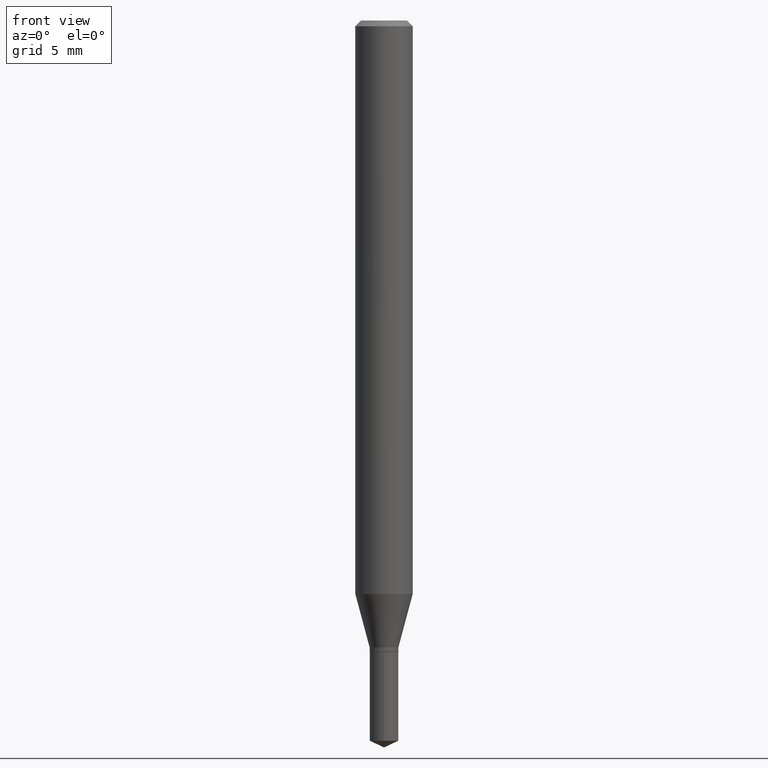
[diagram: clean part render]
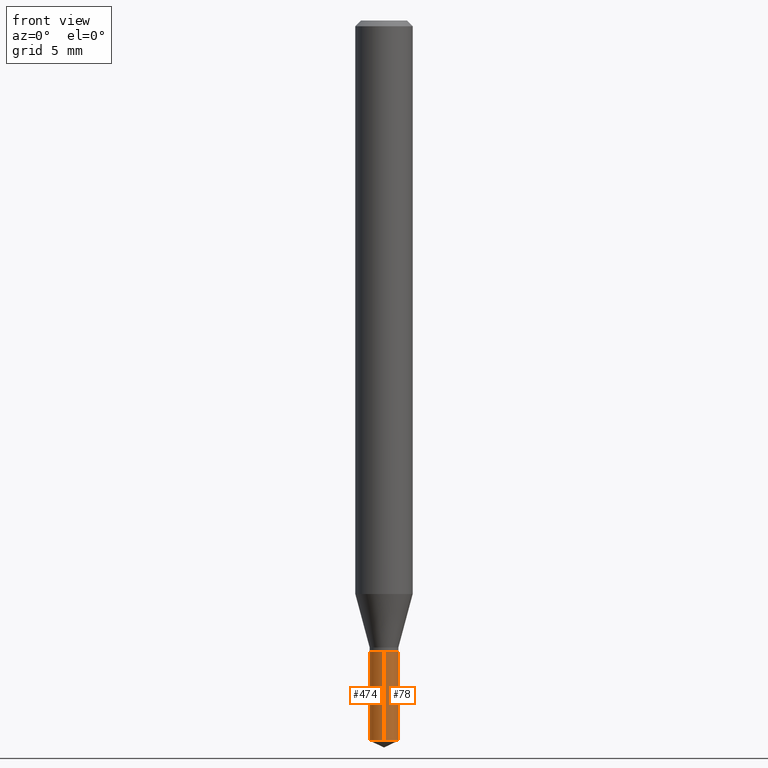
[diagram: same view with one multi-face feature highlighted, each face labeled with its STEP entity id]
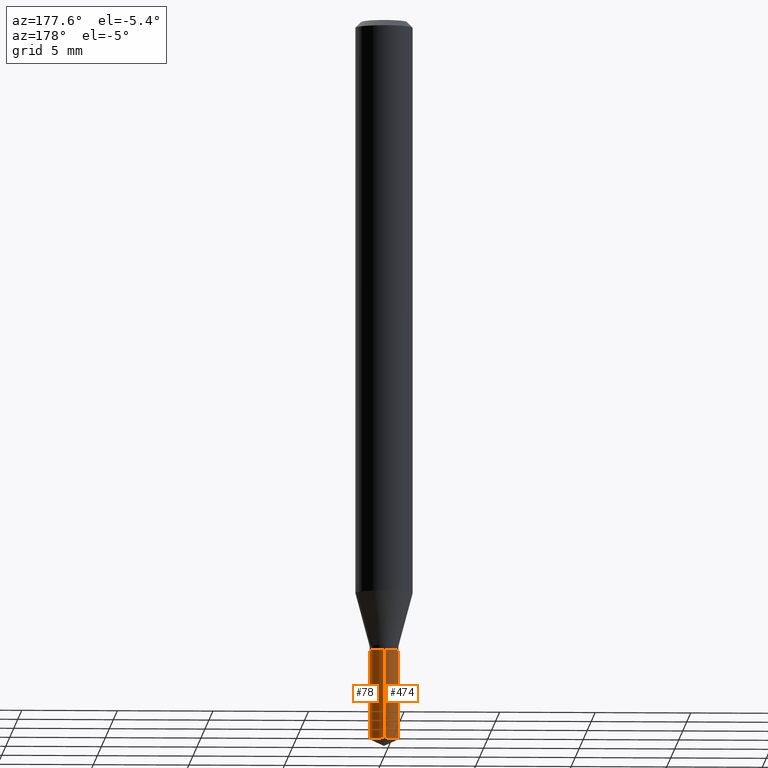
[diagram: same view with one multi-face feature highlighted, each face labeled with its STEP entity id]
A machine part, front view. The highlighted faces form ONE feature: a constant-radius fillet chain: 2 tangent blend faces with common blend radius 0.7506 mm. The faces share edges in the B-rep.
A second angle (auxiliary view) of the same feature is appended — it is thin or edge-on in the first view.
Their STEP definitions:
[1] entity #474 (Cylinder):
#5 = DIRECTION ( 'NONE',  ( -6.982962677686265922E-15, -1.000000000000000000, 0.000000000000000000 ) ) ;
#7 = CARTESIAN_POINT ( 'NONE',  ( 2.099653784171458177E-16, 0.02954999999999482346, -1.482320608701519937 ) ) ;
#19 = CYLINDRICAL_SURFACE ( 'NONE', #335, 0.02954999999999999641 ) ;
#61 = ORIENTED_EDGE ( 'NONE', *, *, #293, .F. ) ;
#67 = DIRECTION ( 'NONE',  ( -2.456664372604500881E-29, 3.475448650518548198E-15, 1.000000000000000000 ) ) ;
#71 = VECTOR ( 'NONE', #397, 39.37007874015748143 ) ;
#86 = VERTEX_POINT ( 'NONE', #7 ) ;
#102 = DIRECTION ( 'NONE',  ( -2.456664372604500601E-29, 3.475448650518548198E-15, 1.000000000000000000 ) ) ;
#108 = CARTESIAN_POINT ( 'NONE',  ( 2.099653784171458424E-16, 0.02954999999999545837, -1.299199999999999910 ) ) ;
#127 = CARTESIAN_POINT ( 'NONE',  ( 2.099653784171413311E-16, 0.02954999999999545837, -1.299199999999999910 ) ) ;
#131 = VECTOR ( 'NONE', #67, 39.37007874015748143 ) ;
#142 = CIRCLE ( 'NONE', #415, 0.02954999999999999641 ) ;
#150 = VERTEX_POINT ( 'NONE', #284 ) ;
#160 = CARTESIAN_POINT ( 'NONE',  ( 3.177153072995728757E-29, -4.536132555425014733E-15, -1.299199999999999910 ) ) ;
#163 = LINE ( 'NONE', #127, #71 ) ;
#176 = ORIENTED_EDGE ( 'NONE', *, *, #243, .T. ) ;
#196 = VERTEX_POINT ( 'NONE', #108 ) ;
#215 = AXIS2_PLACEMENT_3D ( 'NONE', #160, #306, #5 ) ;
#232 = EDGE_CURVE ( 'NONE', #86, #407, #142, .T. ) ;
#243 = EDGE_CURVE ( 'NONE', #407, #150, #364, .T. ) ;
#246 = DIRECTION ( 'NONE',  ( -2.456664372604500601E-29, 3.475448650518548198E-15, 1.000000000000000000 ) ) ;
#247 = DIRECTION ( 'NONE',  ( -6.982962677686265922E-15, -1.000000000000000000, 0.000000000000000000 ) ) ;
#248 = EDGE_LOOP ( 'NONE', ( #336, #450, #176, #61 ) ) ;
#250 = CIRCLE ( 'NONE', #215, 0.02954999999999999988 ) ;
#252 = CARTESIAN_POINT ( 'NONE',  ( -2.063465471255973657E-16, -0.02955000000000453445, -1.299199999999999910 ) ) ;
#271 = FACE_OUTER_BOUND ( 'NONE', #248, .T. ) ;
#284 = CARTESIAN_POINT ( 'NONE',  ( -2.063465471255973904E-16, -0.02955000000000453791, -1.299199999999999910 ) ) ;
#293 = EDGE_CURVE ( 'NONE', #196, #150, #250, .T. ) ;
#306 = DIRECTION ( 'NONE',  ( -2.456664372604500601E-29, 3.475448650518548198E-15, 1.000000000000000000 ) ) ;
#335 = AXIS2_PLACEMENT_3D ( 'NONE', #427, #246, #401 ) ;
#336 = ORIENTED_EDGE ( 'NONE', *, *, #436, .F. ) ;
#364 = LINE ( 'NONE', #252, #131 ) ;
#397 = DIRECTION ( 'NONE',  ( -2.456664372604500881E-29, 3.475448650518548198E-15, 1.000000000000000000 ) ) ;
#401 = DIRECTION ( 'NONE',  ( -6.982962677686265922E-15, -1.000000000000000000, 0.000000000000000000 ) ) ;
#407 = VERTEX_POINT ( 'NONE', #469 ) ;
#415 = AXIS2_PLACEMENT_3D ( 'NONE', #437, #102, #247 ) ;
#427 = CARTESIAN_POINT ( 'NONE',  ( 3.177153072995728757E-29, -4.536132555425014733E-15, -1.299199999999999910 ) ) ;
#436 = EDGE_CURVE ( 'NONE', #86, #196, #163, .T. ) ;
#437 = CARTESIAN_POINT ( 'NONE',  ( 3.627018948282403483E-29, -5.172558827818846924E-15, -1.482320608701519937 ) ) ;
#450 = ORIENTED_EDGE ( 'NONE', *, *, #232, .T. ) ;
#469 = CARTESIAN_POINT ( 'NONE',  ( -2.063465471255928544E-16, -0.02955000000000516935, -1.482320608701519937 ) ) ;
#474 = ADVANCED_FACE ( 'NONE', ( #271 ), #19, .T. ) ;
[2] entity #78 (Cylinder):
#2 = EDGE_LOOP ( 'NONE', ( #396, #213, #97, #295 ) ) ;
#7 = CARTESIAN_POINT ( 'NONE',  ( 2.099653784171458177E-16, 0.02954999999999482346, -1.482320608701519937 ) ) ;
#15 = CARTESIAN_POINT ( 'NONE',  ( 3.177153072995728757E-29, -4.536132555425014733E-15, -1.299199999999999910 ) ) ;
#21 = CIRCLE ( 'NONE', #309, 0.02954999999999999988 ) ;
#46 = DIRECTION ( 'NONE',  ( -2.456664372604500601E-29, 3.475448650518548198E-15, 1.000000000000000000 ) ) ;
#67 = DIRECTION ( 'NONE',  ( -2.456664372604500881E-29, 3.475448650518548198E-15, 1.000000000000000000 ) ) ;
#71 = VECTOR ( 'NONE', #397, 39.37007874015748143 ) ;
#78 = ADVANCED_FACE ( 'NONE', ( #83 ), #229, .T. ) ;
#83 = FACE_OUTER_BOUND ( 'NONE', #2, .T. ) ;
#86 = VERTEX_POINT ( 'NONE', #7 ) ;
#97 = ORIENTED_EDGE ( 'NONE', *, *, #337, .F. ) ;
#108 = CARTESIAN_POINT ( 'NONE',  ( 2.099653784171458424E-16, 0.02954999999999545837, -1.299199999999999910 ) ) ;
#127 = CARTESIAN_POINT ( 'NONE',  ( 2.099653784171413311E-16, 0.02954999999999545837, -1.299199999999999910 ) ) ;
#131 = VECTOR ( 'NONE', #67, 39.37007874015748143 ) ;
#149 = EDGE_CURVE ( 'NONE', #407, #86, #256, .T. ) ;
#150 = VERTEX_POINT ( 'NONE', #284 ) ;
#162 = AXIS2_PLACEMENT_3D ( 'NONE', #356, #324, #313 ) ;
#163 = LINE ( 'NONE', #127, #71 ) ;
#196 = VERTEX_POINT ( 'NONE', #108 ) ;
#209 = DIRECTION ( 'NONE',  ( -6.982962677686265922E-15, -1.000000000000000000, 0.000000000000000000 ) ) ;
#213 = ORIENTED_EDGE ( 'NONE', *, *, #436, .T. ) ;
#219 = AXIS2_PLACEMENT_3D ( 'NONE', #383, #46, #234 ) ;
#229 = CYLINDRICAL_SURFACE ( 'NONE', #219, 0.02954999999999999641 ) ;
#234 = DIRECTION ( 'NONE',  ( -6.982962677686265922E-15, -1.000000000000000000, 0.000000000000000000 ) ) ;
#243 = EDGE_CURVE ( 'NONE', #407, #150, #364, .T. ) ;
#252 = CARTESIAN_POINT ( 'NONE',  ( -2.063465471255973657E-16, -0.02955000000000453445, -1.299199999999999910 ) ) ;
#256 = CIRCLE ( 'NONE', #162, 0.02954999999999999641 ) ;
#284 = CARTESIAN_POINT ( 'NONE',  ( -2.063465471255973904E-16, -0.02955000000000453791, -1.299199999999999910 ) ) ;
#295 = ORIENTED_EDGE ( 'NONE', *, *, #243, .F. ) ;
#309 = AXIS2_PLACEMENT_3D ( 'NONE', #15, #319, #209 ) ;
#313 = DIRECTION ( 'NONE',  ( -6.982962677686265922E-15, -1.000000000000000000, 0.000000000000000000 ) ) ;
#319 = DIRECTION ( 'NONE',  ( -2.456664372604500601E-29, 3.475448650518548198E-15, 1.000000000000000000 ) ) ;
#324 = DIRECTION ( 'NONE',  ( -2.456664372604500601E-29, 3.475448650518548198E-15, 1.000000000000000000 ) ) ;
#337 = EDGE_CURVE ( 'NONE', #150, #196, #21, .T. ) ;
#356 = CARTESIAN_POINT ( 'NONE',  ( 3.627018948282403483E-29, -5.172558827818846924E-15, -1.482320608701519937 ) ) ;
#364 = LINE ( 'NONE', #252, #131 ) ;
#383 = CARTESIAN_POINT ( 'NONE',  ( 3.177153072995728757E-29, -4.536132555425014733E-15, -1.299199999999999910 ) ) ;
#396 = ORIENTED_EDGE ( 'NONE', *, *, #149, .T. ) ;
#397 = DIRECTION ( 'NONE',  ( -2.456664372604500881E-29, 3.475448650518548198E-15, 1.000000000000000000 ) ) ;
#407 = VERTEX_POINT ( 'NONE', #469 ) ;
#436 = EDGE_CURVE ( 'NONE', #86, #196, #163, .T. ) ;
#469 = CARTESIAN_POINT ( 'NONE',  ( -2.063465471255928544E-16, -0.02955000000000516935, -1.482320608701519937 ) ) ;